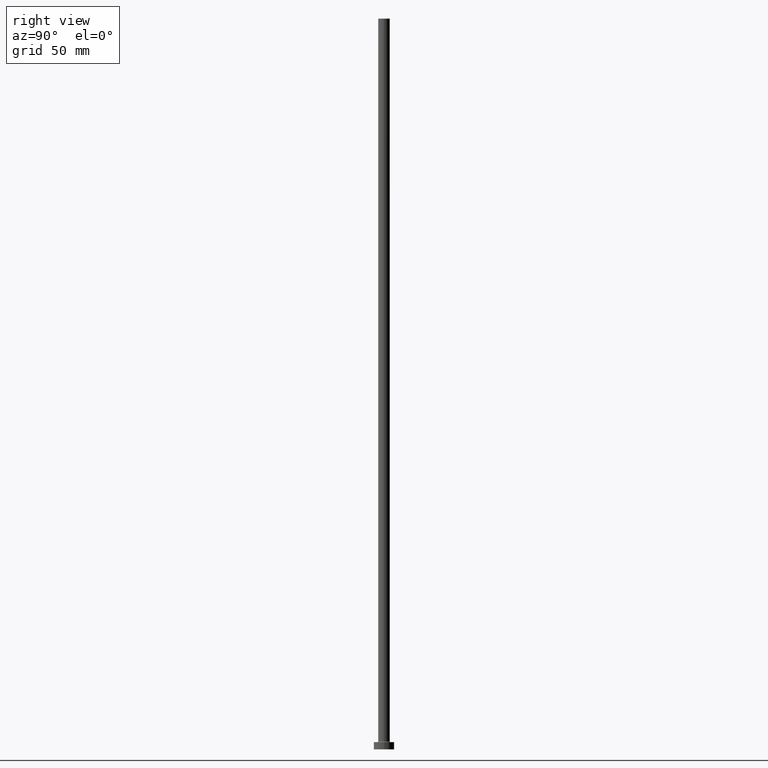
[diagram: clean part render]
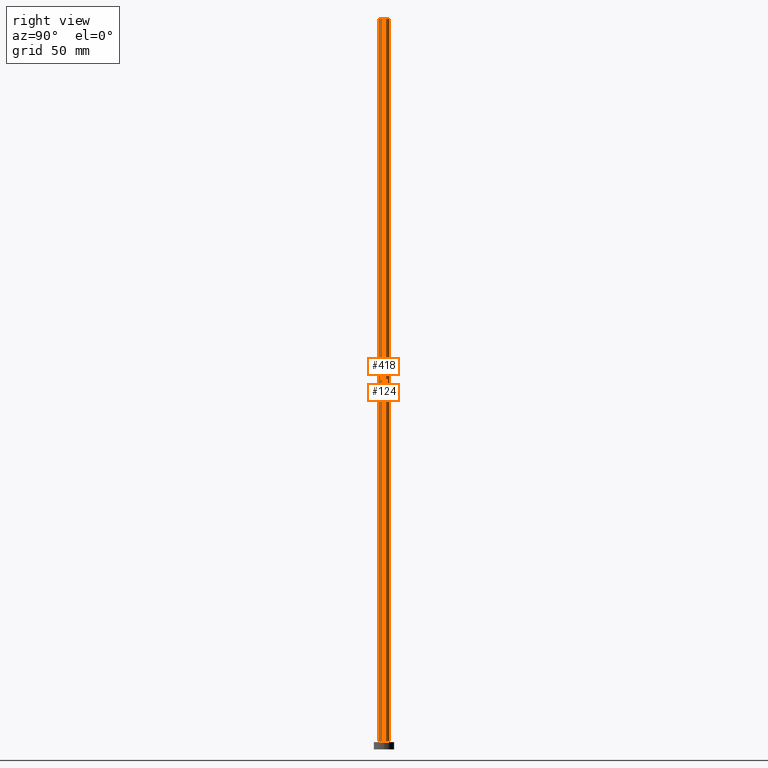
[diagram: same view with one multi-face feature highlighted, each face labeled with its STEP entity id]
A machine part, right view. The highlighted faces form ONE feature: a constant-radius fillet chain: 2 tangent blend faces with common blend radius 4 mm. The faces share edges in the B-rep.
Their STEP definitions:
[1] entity #418 (Cylinder):
#7 = DIRECTION ( 'NONE',  ( 1.000000000000000000, 0.000000000000000000, 0.000000000000000000 ) ) ;
#8 = EDGE_CURVE ( 'NONE', #53, #359, #404, .T. ) ;
#13 = DIRECTION ( 'NONE',  ( -0.000000000000000000, -0.000000000000000000, -1.000000000000000000 ) ) ;
#18 = LINE ( 'NONE', #219, #331 ) ;
#19 = CARTESIAN_POINT ( 'NONE',  ( -4.000000000000000000, 0.000000000000000000, 500.0000000000000000 ) ) ;
#25 = CARTESIAN_POINT ( 'NONE',  ( 4.000000000000000000, 4.898587196589412829E-16, 500.0000000000000000 ) ) ;
#53 = VERTEX_POINT ( 'NONE', #19 ) ;
#63 = CIRCLE ( 'NONE', #85, 4.000000000000000000 ) ;
#67 = ORIENTED_EDGE ( 'NONE', *, *, #8, .F. ) ;
#85 = AXIS2_PLACEMENT_3D ( 'NONE', #193, #248, #252 ) ;
#104 = EDGE_CURVE ( 'NONE', #53, #448, #18, .T. ) ;
#108 = CARTESIAN_POINT ( 'NONE',  ( 0.000000000000000000, 0.000000000000000000, 500.0000000000000000 ) ) ;
#137 = CARTESIAN_POINT ( 'NONE',  ( -4.000000000000000000, 0.000000000000000000, 5.500000000000005329 ) ) ;
#161 = CARTESIAN_POINT ( 'NONE',  ( 4.000000000000000000, 4.898587196589412829E-16, 500.0000000000000000 ) ) ;
#183 = AXIS2_PLACEMENT_3D ( 'NONE', #218, #376, #7 ) ;
#192 = AXIS2_PLACEMENT_3D ( 'NONE', #108, #380, #390 ) ;
#193 = CARTESIAN_POINT ( 'NONE',  ( 0.000000000000000000, 0.000000000000000000, 5.500000000000005329 ) ) ;
#208 = CARTESIAN_POINT ( 'NONE',  ( 4.000000000000000000, 4.898587196589412829E-16, 5.500000000000005329 ) ) ;
#218 = CARTESIAN_POINT ( 'NONE',  ( 0.000000000000000000, 0.000000000000000000, 500.0000000000000000 ) ) ;
#219 = CARTESIAN_POINT ( 'NONE',  ( -4.000000000000000000, 0.000000000000000000, 500.0000000000000000 ) ) ;
#223 = CYLINDRICAL_SURFACE ( 'NONE', #192, 4.000000000000000000 ) ;
#225 = VERTEX_POINT ( 'NONE', #208 ) ;
#248 = DIRECTION ( 'NONE',  ( 0.000000000000000000, 0.000000000000000000, 1.000000000000000000 ) ) ;
#252 = DIRECTION ( 'NONE',  ( 1.000000000000000000, 0.000000000000000000, 0.000000000000000000 ) ) ;
#268 = FACE_OUTER_BOUND ( 'NONE', #324, .T. ) ;
#279 = VECTOR ( 'NONE', #325, 1000.000000000000000 ) ;
#304 = ORIENTED_EDGE ( 'NONE', *, *, #104, .T. ) ;
#324 = EDGE_LOOP ( 'NONE', ( #346, #67, #304, #388 ) ) ;
#325 = DIRECTION ( 'NONE',  ( -0.000000000000000000, -0.000000000000000000, -1.000000000000000000 ) ) ;
#331 = VECTOR ( 'NONE', #13, 1000.000000000000000 ) ;
#336 = EDGE_CURVE ( 'NONE', #448, #225, #63, .T. ) ;
#346 = ORIENTED_EDGE ( 'NONE', *, *, #375, .F. ) ;
#359 = VERTEX_POINT ( 'NONE', #25 ) ;
#375 = EDGE_CURVE ( 'NONE', #359, #225, #426, .T. ) ;
#376 = DIRECTION ( 'NONE',  ( 0.000000000000000000, 0.000000000000000000, 1.000000000000000000 ) ) ;
#380 = DIRECTION ( 'NONE',  ( -0.000000000000000000, -0.000000000000000000, -1.000000000000000000 ) ) ;
#388 = ORIENTED_EDGE ( 'NONE', *, *, #336, .T. ) ;
#390 = DIRECTION ( 'NONE',  ( -1.000000000000000000, 0.000000000000000000, 0.000000000000000000 ) ) ;
#404 = CIRCLE ( 'NONE', #183, 4.000000000000000000 ) ;
#418 = ADVANCED_FACE ( 'NONE', ( #268 ), #223, .T. ) ;
#426 = LINE ( 'NONE', #161, #279 ) ;
#448 = VERTEX_POINT ( 'NONE', #137 ) ;
[2] entity #124 (Cylinder):
#13 = DIRECTION ( 'NONE',  ( -0.000000000000000000, -0.000000000000000000, -1.000000000000000000 ) ) ;
#16 = CIRCLE ( 'NONE', #347, 4.000000000000000000 ) ;
#18 = LINE ( 'NONE', #219, #331 ) ;
#19 = CARTESIAN_POINT ( 'NONE',  ( -4.000000000000000000, 0.000000000000000000, 500.0000000000000000 ) ) ;
#25 = CARTESIAN_POINT ( 'NONE',  ( 4.000000000000000000, 4.898587196589412829E-16, 500.0000000000000000 ) ) ;
#53 = VERTEX_POINT ( 'NONE', #19 ) ;
#60 = FACE_OUTER_BOUND ( 'NONE', #238, .T. ) ;
#65 = CARTESIAN_POINT ( 'NONE',  ( 0.000000000000000000, 0.000000000000000000, 5.500000000000005329 ) ) ;
#73 = CARTESIAN_POINT ( 'NONE',  ( 0.000000000000000000, 0.000000000000000000, 500.0000000000000000 ) ) ;
#82 = DIRECTION ( 'NONE',  ( 0.000000000000000000, 0.000000000000000000, 1.000000000000000000 ) ) ;
#96 = ORIENTED_EDGE ( 'NONE', *, *, #157, .T. ) ;
#97 = CIRCLE ( 'NONE', #385, 4.000000000000000000 ) ;
#104 = EDGE_CURVE ( 'NONE', #53, #448, #18, .T. ) ;
#109 = AXIS2_PLACEMENT_3D ( 'NONE', #73, #165, #189 ) ;
#120 = DIRECTION ( 'NONE',  ( 0.000000000000000000, 0.000000000000000000, 1.000000000000000000 ) ) ;
#124 = ADVANCED_FACE ( 'NONE', ( #60 ), #191, .T. ) ;
#137 = CARTESIAN_POINT ( 'NONE',  ( -4.000000000000000000, 0.000000000000000000, 5.500000000000005329 ) ) ;
#157 = EDGE_CURVE ( 'NONE', #225, #448, #97, .T. ) ;
#161 = CARTESIAN_POINT ( 'NONE',  ( 4.000000000000000000, 4.898587196589412829E-16, 500.0000000000000000 ) ) ;
#165 = DIRECTION ( 'NONE',  ( -0.000000000000000000, -0.000000000000000000, -1.000000000000000000 ) ) ;
#189 = DIRECTION ( 'NONE',  ( -1.000000000000000000, 0.000000000000000000, 0.000000000000000000 ) ) ;
#191 = CYLINDRICAL_SURFACE ( 'NONE', #109, 4.000000000000000000 ) ;
#197 = EDGE_CURVE ( 'NONE', #359, #53, #16, .T. ) ;
#208 = CARTESIAN_POINT ( 'NONE',  ( 4.000000000000000000, 4.898587196589412829E-16, 5.500000000000005329 ) ) ;
#209 = CARTESIAN_POINT ( 'NONE',  ( 0.000000000000000000, 0.000000000000000000, 500.0000000000000000 ) ) ;
#219 = CARTESIAN_POINT ( 'NONE',  ( -4.000000000000000000, 0.000000000000000000, 500.0000000000000000 ) ) ;
#225 = VERTEX_POINT ( 'NONE', #208 ) ;
#238 = EDGE_LOOP ( 'NONE', ( #429, #260, #96, #398 ) ) ;
#240 = DIRECTION ( 'NONE',  ( 1.000000000000000000, 0.000000000000000000, 0.000000000000000000 ) ) ;
#260 = ORIENTED_EDGE ( 'NONE', *, *, #375, .T. ) ;
#279 = VECTOR ( 'NONE', #325, 1000.000000000000000 ) ;
#325 = DIRECTION ( 'NONE',  ( -0.000000000000000000, -0.000000000000000000, -1.000000000000000000 ) ) ;
#331 = VECTOR ( 'NONE', #13, 1000.000000000000000 ) ;
#332 = DIRECTION ( 'NONE',  ( 1.000000000000000000, 0.000000000000000000, 0.000000000000000000 ) ) ;
#347 = AXIS2_PLACEMENT_3D ( 'NONE', #209, #82, #332 ) ;
#359 = VERTEX_POINT ( 'NONE', #25 ) ;
#375 = EDGE_CURVE ( 'NONE', #359, #225, #426, .T. ) ;
#385 = AXIS2_PLACEMENT_3D ( 'NONE', #65, #120, #240 ) ;
#398 = ORIENTED_EDGE ( 'NONE', *, *, #104, .F. ) ;
#426 = LINE ( 'NONE', #161, #279 ) ;
#429 = ORIENTED_EDGE ( 'NONE', *, *, #197, .F. ) ;
#448 = VERTEX_POINT ( 'NONE', #137 ) ;